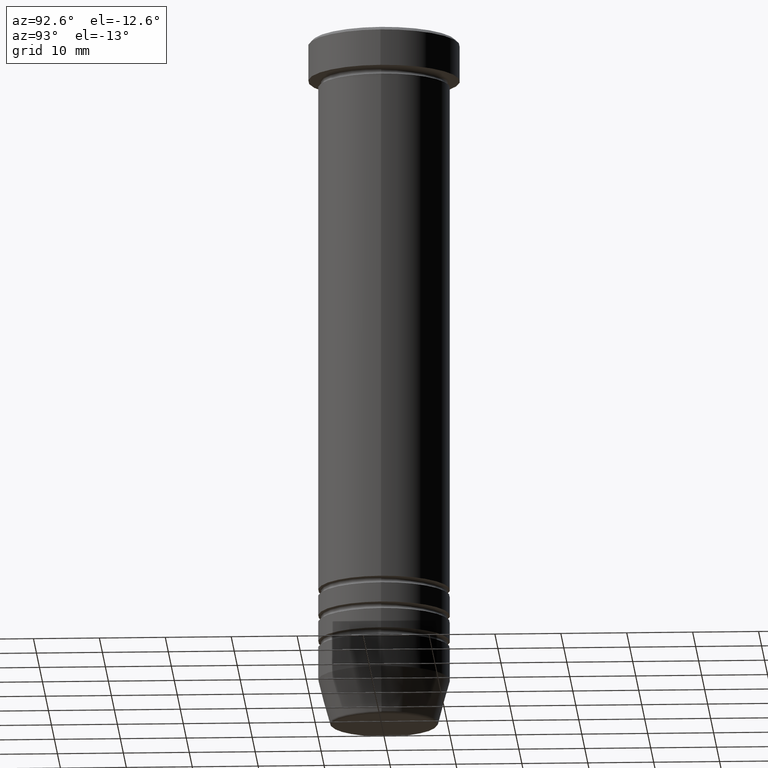
[diagram: clean part render]
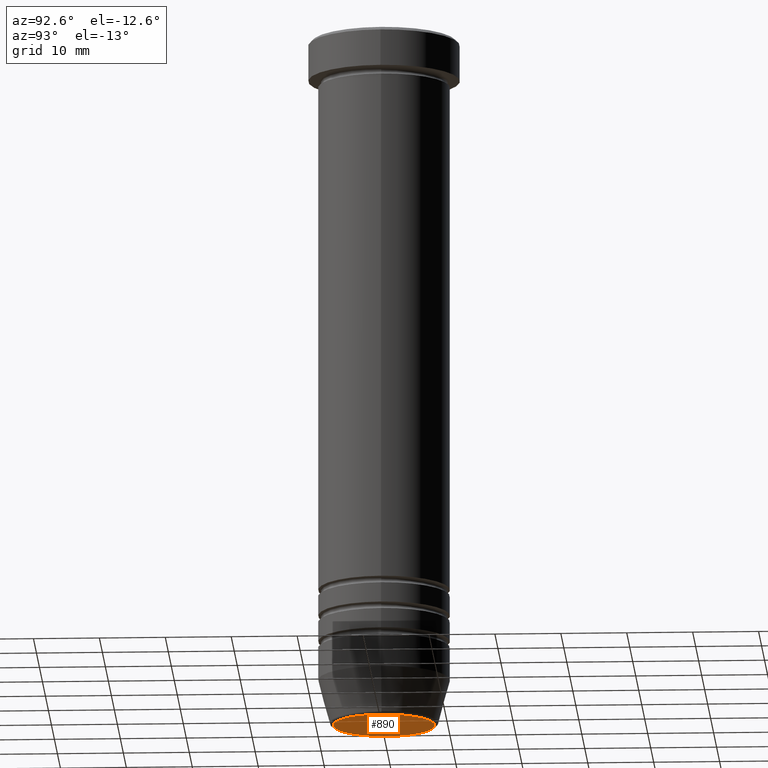
[diagram: same view with one face highlighted and labeled with its STEP entity id]
A machine part, auxiliary view. The second image highlights one B-rep face of the part: STEP entity #890.
In plain terms, the highlighted planar face has unit normal (0, -0, 1).
Its self-contained STEP definition (entity closure, byte-faithful):
#44 = ORIENTED_EDGE ( 'NONE', *, *, #1148, .T. ) ;
#77 = EDGE_CURVE ( 'NONE', #1138, #1011, #644, .T. ) ;
#130 = FACE_OUTER_BOUND ( 'NONE', #1018, .T. ) ;
#205 = ORIENTED_EDGE ( 'NONE', *, *, #77, .T. ) ;
#228 = CARTESIAN_POINT ( 'NONE',  ( -7.740692158992654726, 9.775343368540039135E-16, -105.9999999999999858 ) ) ;
#274 = AXIS2_PLACEMENT_3D ( 'NONE', #326, #589, #519 ) ;
#326 = CARTESIAN_POINT ( 'NONE',  ( 0.000000000000000000, 0.000000000000000000, -105.9999999999999858 ) ) ;
#442 = CARTESIAN_POINT ( 'NONE',  ( 0.000000000000000000, 0.000000000000000000, -105.9999999999999858 ) ) ;
#493 = AXIS2_PLACEMENT_3D ( 'NONE', #442, #698, #786 ) ;
#519 = DIRECTION ( 'NONE',  ( 1.000000000000000000, 0.000000000000000000, 0.000000000000000000 ) ) ;
#565 = DIRECTION ( 'NONE',  ( 0.000000000000000000, -0.000000000000000000, 1.000000000000000000 ) ) ;
#585 = DIRECTION ( 'NONE',  ( 1.000000000000000000, 0.000000000000000000, 0.000000000000000000 ) ) ;
#589 = DIRECTION ( 'NONE',  ( 0.000000000000000000, 0.000000000000000000, -1.000000000000000000 ) ) ;
#596 = CARTESIAN_POINT ( 'NONE',  ( 7.740692158992654726, 0.000000000000000000, -105.9999999999999858 ) ) ;
#617 = CIRCLE ( 'NONE', #274, 7.740692158992654726 ) ;
#644 = CIRCLE ( 'NONE', #493, 7.740692158992654726 ) ;
#698 = DIRECTION ( 'NONE',  ( 0.000000000000000000, 0.000000000000000000, -1.000000000000000000 ) ) ;
#747 = CARTESIAN_POINT ( 'NONE',  ( 0.000000000000000000, 5.694607616035190700E-15, -105.9999999999999858 ) ) ;
#786 = DIRECTION ( 'NONE',  ( 1.000000000000000000, 0.000000000000000000, 0.000000000000000000 ) ) ;
#890 = ADVANCED_FACE ( 'NONE', ( #130 ), #1095, .F. ) ;
#1011 = VERTEX_POINT ( 'NONE', #596 ) ;
#1013 = AXIS2_PLACEMENT_3D ( 'NONE', #747, #565, #585 ) ;
#1018 = EDGE_LOOP ( 'NONE', ( #44, #205 ) ) ;
#1095 = PLANE ( 'NONE',  #1013 ) ;
#1138 = VERTEX_POINT ( 'NONE', #228 ) ;
#1148 = EDGE_CURVE ( 'NONE', #1011, #1138, #617, .T. ) ;